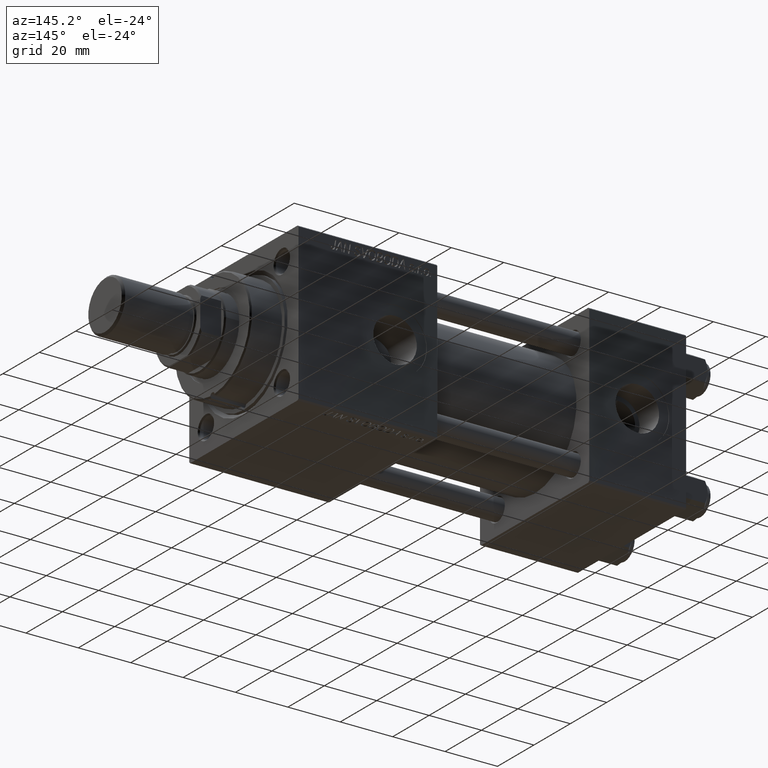
[diagram: clean part render]
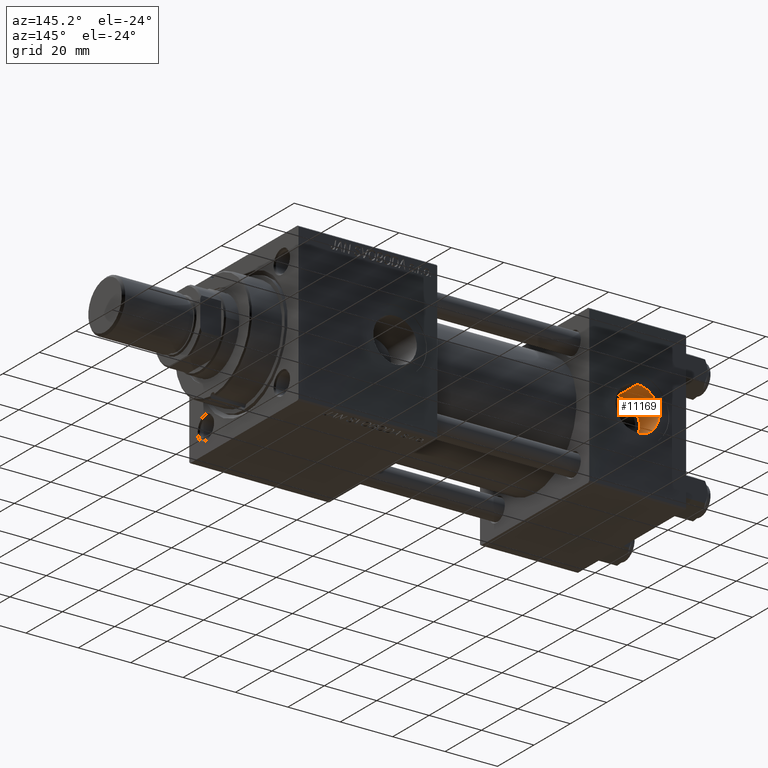
[diagram: same view with one face highlighted and labeled with its STEP entity id]
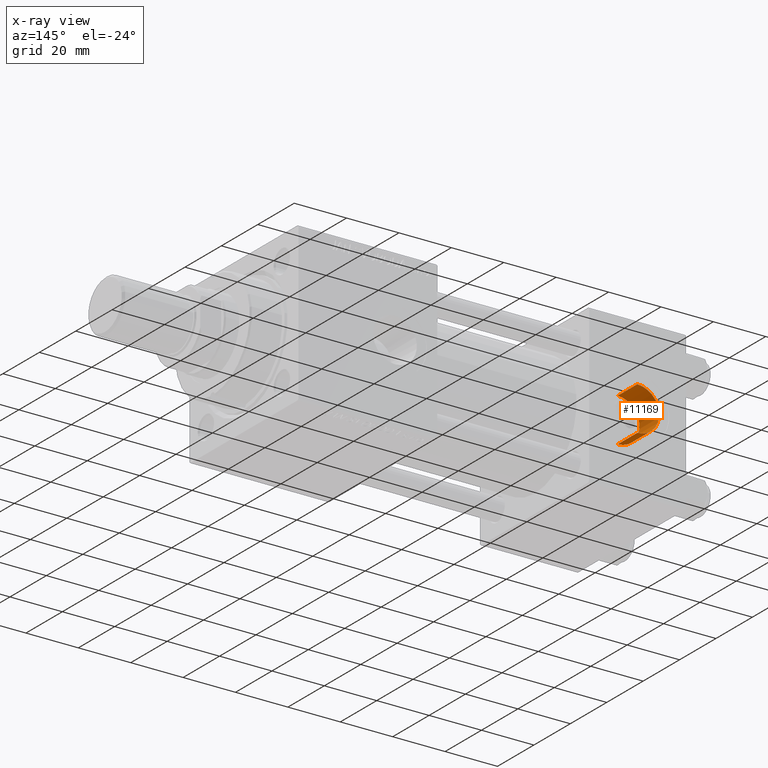
[diagram: x-ray of the same camera — body ghosted, the highlighted face saturated]
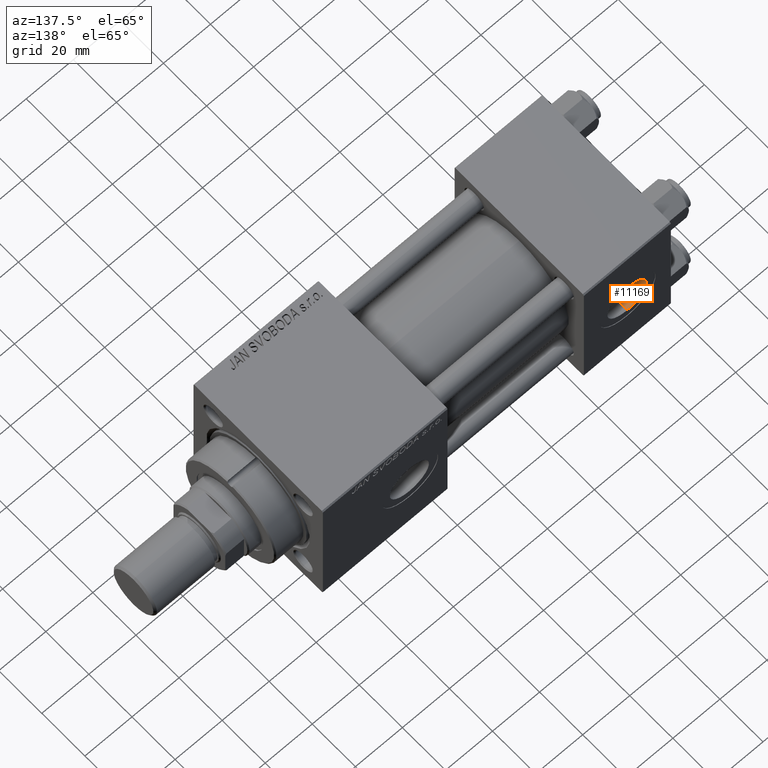
[diagram: same view with one face highlighted and labeled with its STEP entity id]
A machine part, auxiliary view. The second image highlights one B-rep face of the part: STEP entity #11169.
The next image is the same camera in x-ray: the body ghosted, the highlighted face saturated — about 0% of this face is hidden behind the body in this view.
A second angle (auxiliary view) of the same face is appended — the face is thin or edge-on in the first view.
In plain terms, the highlighted cylindrical surface (edge-blend (fillet) strip) has radius 8.33 mm, axis along (0, 1, 0).
Its self-contained STEP definition (entity closure, byte-faithful):
#576 = CARTESIAN_POINT ( 'NONE',  ( 18.50000000000000000, 18.99999999999999289, -8.330000000000001847 ) ) ;
#1118 = ORIENTED_EDGE ( 'NONE', *, *, #17161, .F. ) ;
#1699 = AXIS2_PLACEMENT_3D ( 'NONE', #24121, #17592, #40765 ) ;
#3152 = CARTESIAN_POINT ( 'NONE',  ( 18.50000000000000000, 29.79999999999999361, -8.330000000000001847 ) ) ;
#3539 = DIRECTION ( 'NONE',  ( -0.000000000000000000, 1.000000000000000000, -0.000000000000000000 ) ) ;
#7703 = ORIENTED_EDGE ( 'NONE', *, *, #26459, .T. ) ;
#9882 = CARTESIAN_POINT ( 'NONE',  ( 18.50000000000000000, 18.99999999999999289, 8.330000000000001847 ) ) ;
#10680 = AXIS2_PLACEMENT_3D ( 'NONE', #50448, #18761, #42693 ) ;
#11169 = ADVANCED_FACE ( 'NONE', ( #29683 ), #45384, .F. ) ;
#13315 = EDGE_CURVE ( 'NONE', #43841, #22618, #39954, .T. ) ;
#15890 = VERTEX_POINT ( 'NONE', #9882 ) ;
#17161 = EDGE_CURVE ( 'NONE', #43841, #15890, #20848, .T. ) ;
#17592 = DIRECTION ( 'NONE',  ( -0.000000000000000000, 1.000000000000000000, -0.000000000000000000 ) ) ;
#18076 = DIRECTION ( 'NONE',  ( 0.000000000000000000, 1.000000000000000000, 0.000000000000000000 ) ) ;
#18554 = ORIENTED_EDGE ( 'NONE', *, *, #13315, .T. ) ;
#18761 = DIRECTION ( 'NONE',  ( 0.000000000000000000, 1.000000000000000000, 0.000000000000000000 ) ) ;
#20848 = CIRCLE ( 'NONE', #46295, 8.330000000000001847 ) ;
#22354 = VECTOR ( 'NONE', #36354, 1000.000000000000000 ) ;
#22618 = VERTEX_POINT ( 'NONE', #3152 ) ;
#24121 = CARTESIAN_POINT ( 'NONE',  ( 18.50000000000000000, 18.99999999999999289, 0.000000000000000000 ) ) ;
#26459 = EDGE_CURVE ( 'NONE', #22618, #39401, #31980, .T. ) ;
#26645 = CARTESIAN_POINT ( 'NONE',  ( 18.50000000000000000, 29.79999999999999361, 8.330000000000001847 ) ) ;
#27220 = LINE ( 'NONE', #50920, #33211 ) ;
#29683 = FACE_OUTER_BOUND ( 'NONE', #50733, .T. ) ;
#31980 = CIRCLE ( 'NONE', #10680, 8.330000000000001847 ) ;
#32865 = CARTESIAN_POINT ( 'NONE',  ( 18.50000000000000000, 18.99999999999999289, -8.330000000000001847 ) ) ;
#33211 = VECTOR ( 'NONE', #3539, 1000.000000000000000 ) ;
#36354 = DIRECTION ( 'NONE',  ( -0.000000000000000000, 1.000000000000000000, -0.000000000000000000 ) ) ;
#37916 = ORIENTED_EDGE ( 'NONE', *, *, #43626, .F. ) ;
#39401 = VERTEX_POINT ( 'NONE', #26645 ) ;
#39954 = LINE ( 'NONE', #576, #22354 ) ;
#40765 = DIRECTION ( 'NONE',  ( 0.000000000000000000, 0.000000000000000000, 1.000000000000000000 ) ) ;
#41751 = CARTESIAN_POINT ( 'NONE',  ( 18.50000000000000000, 18.99999999999999289, 0.000000000000000000 ) ) ;
#42259 = DIRECTION ( 'NONE',  ( 0.000000000000000000, 0.000000000000000000, 1.000000000000000000 ) ) ;
#42693 = DIRECTION ( 'NONE',  ( 0.000000000000000000, 0.000000000000000000, 1.000000000000000000 ) ) ;
#43626 = EDGE_CURVE ( 'NONE', #15890, #39401, #27220, .T. ) ;
#43841 = VERTEX_POINT ( 'NONE', #32865 ) ;
#45384 = CYLINDRICAL_SURFACE ( 'NONE', #1699, 8.330000000000001847 ) ;
#46295 = AXIS2_PLACEMENT_3D ( 'NONE', #41751, #18076, #42259 ) ;
#50448 = CARTESIAN_POINT ( 'NONE',  ( 18.50000000000000000, 29.79999999999999361, 0.000000000000000000 ) ) ;
#50733 = EDGE_LOOP ( 'NONE', ( #1118, #18554, #7703, #37916 ) ) ;
#50920 = CARTESIAN_POINT ( 'NONE',  ( 18.50000000000000000, 18.99999999999999289, 8.330000000000001847 ) ) ;